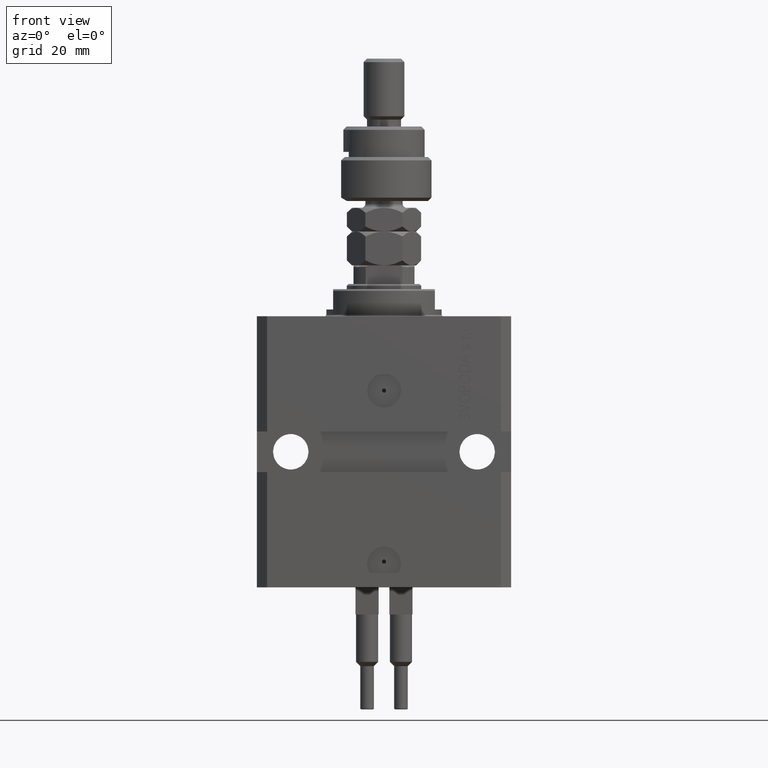
[diagram: clean part render]
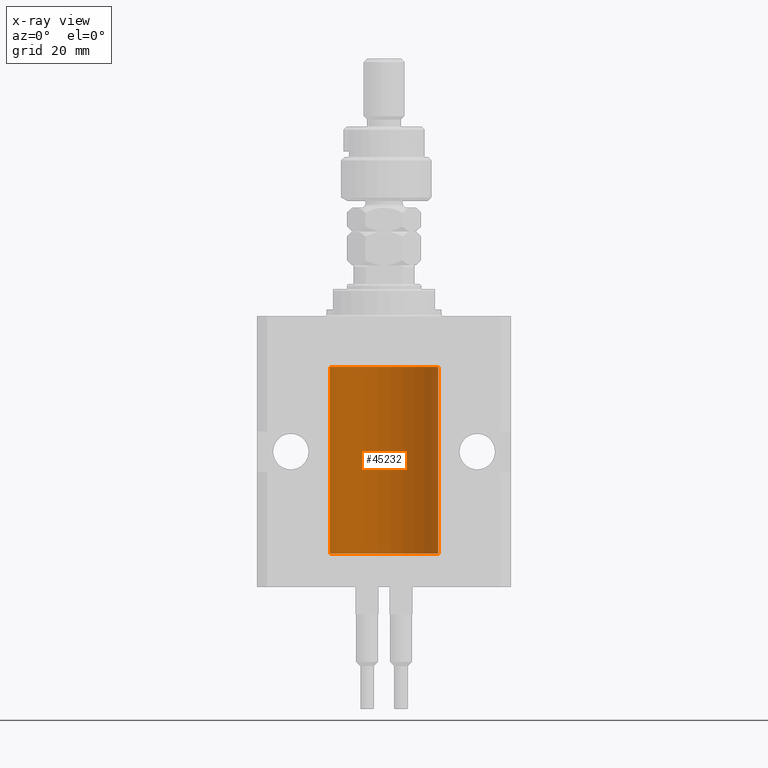
[diagram: x-ray — body ghosted, one internal face saturated and labeled with its STEP entity id]
A machine part, front view, then the same camera in x-ray: the body is ghosted and one INTERNAL B-rep face — a face not visible from any outside direction — is saturated and labeled: STEP entity #45232.
In plain terms, the highlighted cylindrical surface (partial cylindrical patch) has radius 16 mm, axis along (0, 0, 1).
Its self-contained STEP definition (entity closure, byte-faithful):
#445 = CARTESIAN_POINT ( 'NONE',  ( -16.00000000000000000, 1.643679961284177128E-16, -21.37499999999999645 ) ) ;
#567 = DIRECTION ( 'NONE',  ( -0.000000000000000000, -0.000000000000000000, 1.000000000000000000 ) ) ;
#2417 = CARTESIAN_POINT ( 'NONE',  ( -15.99070426498502862, 0.5462220647145645813, -68.31460064614141459 ) ) ;
#2926 = CARTESIAN_POINT ( 'NONE',  ( -15.98778717651346426, 0.6250289588122136530, -68.08131585687053189 ) ) ;
#3205 = CARTESIAN_POINT ( 'NONE',  ( -16.00000000000000000, 1.959434878635765131E-15, -70.09999999999999432 ) ) ;
#3820 = EDGE_CURVE ( 'NONE', #27054, #49902, #44318, .T. ) ;
#3899 = CARTESIAN_POINT ( 'NONE',  ( 16.00000000000000000, 0.000000000000000000, -15.00000000000000000 ) ) ;
#4893 = DIRECTION ( 'NONE',  ( -0.000000000000000000, -0.000000000000000000, 1.000000000000000000 ) ) ;
#5048 = AXIS2_PLACEMENT_3D ( 'NONE', #33838, #30769, #7560 ) ;
#5755 = CIRCLE ( 'NONE', #34253, 16.00000000000000000 ) ;
#6194 = CARTESIAN_POINT ( 'NONE',  ( -15.99070426498503217, 0.5462220647145618058, -22.31460064614143590 ) ) ;
#6236 = CARTESIAN_POINT ( 'NONE',  ( -15.99548640841682712, 0.3843705577988820732, -67.50046628527007897 ) ) ;
#6702 = CARTESIAN_POINT ( 'NONE',  ( -15.99934216141748244, 0.1636497843296417787, -21.39126528029306229 ) ) ;
#6955 = CARTESIAN_POINT ( 'NONE',  ( -16.00000000000013145, 3.685127034031037939E-13, -22.62500000000341771 ) ) ;
#7002 = CARTESIAN_POINT ( 'NONE',  ( -15.99707730059171240, 0.3150375992092334654, -67.45402333202571299 ) ) ;
#7267 = CARTESIAN_POINT ( 'NONE',  ( -16.00000000000000000, 1.959434878635765131E-15, -15.00000000000000000 ) ) ;
#7560 = DIRECTION ( 'NONE',  ( 1.000000000000000000, 0.000000000000000000, 0.000000000000000000 ) ) ;
#8427 = EDGE_CURVE ( 'NONE', #33257, #18330, #46375, .T. ) ;
#8509 = DIRECTION ( 'NONE',  ( 1.000000000000000000, 0.000000000000000000, 0.000000000000000000 ) ) ;
#9524 = FACE_OUTER_BOUND ( 'NONE', #50091, .T. ) ;
#10687 = ORIENTED_EDGE ( 'NONE', *, *, #27864, .F. ) ;
#11588 = EDGE_CURVE ( 'NONE', #49902, #23334, #5755, .T. ) ;
#12210 = VERTEX_POINT ( 'NONE', #20244 ) ;
#13528 = ORIENTED_EDGE ( 'NONE', *, *, #26990, .F. ) ;
#14392 = CARTESIAN_POINT ( 'NONE',  ( -15.99070653155268040, 0.5573233280232966491, -67.67348148680505915 ) ) ;
#14601 = CARTESIAN_POINT ( 'NONE',  ( -15.98778717651346071, 0.6250289588122140971, -22.08131585687052478 ) ) ;
#14642 = CARTESIAN_POINT ( 'NONE',  ( -15.99999999999998934, 0.1631714642025807183, -68.62499999999984368 ) ) ;
#16407 = EDGE_CURVE ( 'NONE', #27054, #12210, #43310, .T. ) ;
#17250 = ORIENTED_EDGE ( 'NONE', *, *, #8427, .F. ) ;
#17706 = CARTESIAN_POINT ( 'NONE',  ( -15.99934216141748244, 0.1636497843296345067, -67.39126528029308361 ) ) ;
#17905 = CARTESIAN_POINT ( 'NONE',  ( -15.99548640841683067, 0.3843705577988847377, -21.50046628527008608 ) ) ;
#17950 = CARTESIAN_POINT ( 'NONE',  ( -15.99228023727723702, 0.5003781296993395911, -68.38347829554236057 ) ) ;
#18330 = VERTEX_POINT ( 'NONE', #32118 ) ;
#19140 = VECTOR ( 'NONE', #567, 1000.000000000000000 ) ;
#19729 = B_SPLINE_CURVE_WITH_KNOTS ( 'NONE', 3,
 ( #37551, #44738, #6702, #33225, #17905, #40890, #49065, #14601, #25546, #6194, #41905, #49575, #30160, #6955 ),
 .UNSPECIFIED., .F., .F.,
 ( 4, 2, 2, 2, 2, 2, 4 ),
 ( 1.597328219370744179E-19, 0.0002442776652680942405, 0.0004885553305361882643, 0.0009771106610723839011, 0.001221388326340481665, 0.001465665991608579430, 0.001954221322144767369 ),
 .UNSPECIFIED. ) ;
#20244 = CARTESIAN_POINT ( 'NONE',  ( -16.00000000000000000, 1.959434878635765131E-15, -70.09999999999999432 ) ) ;
#21768 = CARTESIAN_POINT ( 'NONE',  ( -16.00000000000000711, 0.08259886010189028405, -67.37500000000001421 ) ) ;
#22891 = AXIS2_PLACEMENT_3D ( 'NONE', #36310, #44233, #8509 ) ;
#23334 = VERTEX_POINT ( 'NONE', #7267 ) ;
#23518 = EDGE_CURVE ( 'NONE', #28726, #18330, #19729, .T. ) ;
#25004 = CARTESIAN_POINT ( 'NONE',  ( 16.00000000000000000, 0.000000000000000000, -70.09999999999999432 ) ) ;
#25546 = CARTESIAN_POINT ( 'NONE',  ( -15.98844267028591482, 0.6088369347963316081, -22.16324735024328518 ) ) ;
#26990 = EDGE_CURVE ( 'NONE', #12210, #29312, #30904, .T. ) ;
#27054 = VERTEX_POINT ( 'NONE', #25004 ) ;
#27347 = VECTOR ( 'NONE', #33550, 1000.000000000000000 ) ;
#27864 = EDGE_CURVE ( 'NONE', #28726, #23334, #46304, .T. ) ;
#27887 = CYLINDRICAL_SURFACE ( 'NONE', #22891, 16.00000000000000000 ) ;
#28726 = VERTEX_POINT ( 'NONE', #445 ) ;
#29312 = VERTEX_POINT ( 'NONE', #42127 ) ;
#30160 = CARTESIAN_POINT ( 'NONE',  ( -16.00000000000000000, 0.1631714642025800244, -22.62499999999985789 ) ) ;
#30703 = ORIENTED_EDGE ( 'NONE', *, *, #44125, .T. ) ;
#30769 = DIRECTION ( 'NONE',  ( 0.000000000000000000, 0.000000000000000000, 1.000000000000000000 ) ) ;
#30904 = LINE ( 'NONE', #38556, #19140 ) ;
#31640 = ORIENTED_EDGE ( 'NONE', *, *, #3820, .T. ) ;
#32117 = DIRECTION ( 'NONE',  ( 0.000000000000000000, 0.000000000000000000, 1.000000000000000000 ) ) ;
#32118 = CARTESIAN_POINT ( 'NONE',  ( -16.00000000000013145, 3.685127034031037939E-13, -22.62500000000341771 ) ) ;
#33225 = CARTESIAN_POINT ( 'NONE',  ( -15.99707730059171240, 0.3150375992092407373, -21.45402333202571654 ) ) ;
#33257 = VERTEX_POINT ( 'NONE', #38054 ) ;
#33266 = CARTESIAN_POINT ( 'NONE',  ( -16.00000000000000000, -9.346608026143465119E-15, -67.37500000000000000 ) ) ;
#33550 = DIRECTION ( 'NONE',  ( -0.000000000000000000, -0.000000000000000000, 1.000000000000000000 ) ) ;
#33838 = CARTESIAN_POINT ( 'NONE',  ( 0.000000000000000000, 0.000000000000000000, -70.09999999999999432 ) ) ;
#34058 = VECTOR ( 'NONE', #50458, 1000.000000000000000 ) ;
#34253 = AXIS2_PLACEMENT_3D ( 'NONE', #47444, #32117, #42840 ) ;
#36310 = CARTESIAN_POINT ( 'NONE',  ( 0.000000000000000000, 0.000000000000000000, -70.09999999999999432 ) ) ;
#37339 = CARTESIAN_POINT ( 'NONE',  ( -15.98844267028591126, 0.6088369347963314970, -68.16324735024328163 ) ) ;
#37379 = CARTESIAN_POINT ( 'NONE',  ( 16.00000000000000000, 0.000000000000000000, -70.09999999999999432 ) ) ;
#37551 = CARTESIAN_POINT ( 'NONE',  ( -16.00000000000000000, 1.643679961284177128E-16, -21.37499999999999645 ) ) ;
#37846 = CARTESIAN_POINT ( 'NONE',  ( -15.98779057735153586, 0.6249419637998054888, -67.83670145863507628 ) ) ;
#37893 = VECTOR ( 'NONE', #4893, 1000.000000000000000 ) ;
#38054 = CARTESIAN_POINT ( 'NONE',  ( -16.00000000000000000, -9.346608026143465119E-15, -67.37500000000000000 ) ) ;
#38556 = CARTESIAN_POINT ( 'NONE',  ( -16.00000000000000000, 1.959434878635765131E-15, -70.09999999999999432 ) ) ;
#40890 = CARTESIAN_POINT ( 'NONE',  ( -15.99070653155267685, 0.5573233280232986475, -21.67348148680506625 ) ) ;
#41905 = CARTESIAN_POINT ( 'NONE',  ( -15.99228023727724413, 0.5003781296993413674, -22.38347829554236057 ) ) ;
#42054 = ORIENTED_EDGE ( 'NONE', *, *, #23518, .T. ) ;
#42127 = CARTESIAN_POINT ( 'NONE',  ( -16.00000000000013145, 3.685127046438747128E-13, -68.62500000000343903 ) ) ;
#42614 = ORIENTED_EDGE ( 'NONE', *, *, #11588, .T. ) ;
#42840 = DIRECTION ( 'NONE',  ( 1.000000000000000000, 0.000000000000000000, 0.000000000000000000 ) ) ;
#43310 = CIRCLE ( 'NONE', #5048, 16.00000000000000000 ) ;
#44125 = EDGE_CURVE ( 'NONE', #33257, #29312, #44524, .T. ) ;
#44233 = DIRECTION ( 'NONE',  ( -0.000000000000000000, -0.000000000000000000, 1.000000000000000000 ) ) ;
#44318 = LINE ( 'NONE', #37379, #27347 ) ;
#44524 = B_SPLINE_CURVE_WITH_KNOTS ( 'NONE', 3,
 ( #33266, #21768, #17706, #7002, #6236, #14392, #37846, #2926, #37339, #2417, #17950, #49618, #14642, #45787 ),
 .UNSPECIFIED., .F., .F.,
 ( 4, 2, 2, 2, 2, 2, 4 ),
 ( 9.902737362640428303E-19, 0.0002442776652680895785, 0.0004885553305361781812, 0.0009771106610723552782, 0.001221388326340464752, 0.001465665991608574008, 0.001954221322144763465 ),
 .UNSPECIFIED. ) ;
#44738 = CARTESIAN_POINT ( 'NONE',  ( -16.00000000000000711, 0.08259886010189904093, -21.37500000000000000 ) ) ;
#45232 = ADVANCED_FACE ( 'NONE', ( #9524 ), #27887, .F. ) ;
#45628 = CARTESIAN_POINT ( 'NONE',  ( -16.00000000000000000, 1.959434878635765131E-15, -70.09999999999999432 ) ) ;
#45787 = CARTESIAN_POINT ( 'NONE',  ( -16.00000000000013145, 3.685127046438747128E-13, -68.62500000000343903 ) ) ;
#46304 = LINE ( 'NONE', #3205, #37893 ) ;
#46375 = LINE ( 'NONE', #45628, #34058 ) ;
#47281 = ORIENTED_EDGE ( 'NONE', *, *, #16407, .F. ) ;
#47444 = CARTESIAN_POINT ( 'NONE',  ( 0.000000000000000000, 0.000000000000000000, -15.00000000000000000 ) ) ;
#49065 = CARTESIAN_POINT ( 'NONE',  ( -15.98779057735153941, 0.6249419637998100407, -21.83670145863507273 ) ) ;
#49575 = CARTESIAN_POINT ( 'NONE',  ( -15.99711699979842017, 0.3253759916140657737, -22.55856151623175521 ) ) ;
#49618 = CARTESIAN_POINT ( 'NONE',  ( -15.99711699979840951, 0.3253759916140645525, -68.55856151623176231 ) ) ;
#49902 = VERTEX_POINT ( 'NONE', #3899 ) ;
#50091 = EDGE_LOOP ( 'NONE', ( #13528, #47281, #31640, #42614, #10687, #42054, #17250, #30703 ) ) ;
#50458 = DIRECTION ( 'NONE',  ( -0.000000000000000000, -0.000000000000000000, 1.000000000000000000 ) ) ;